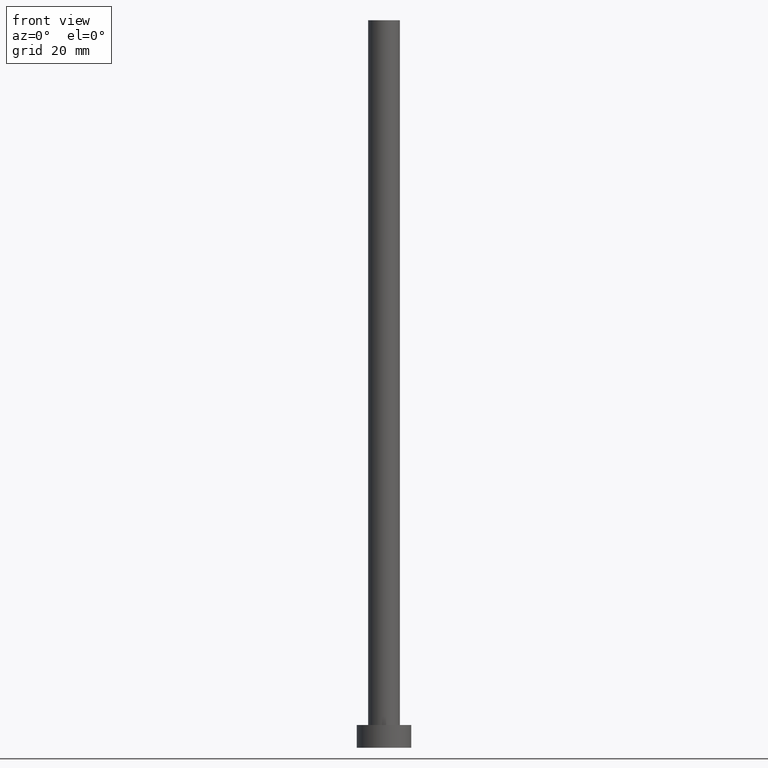
[diagram: clean part render]
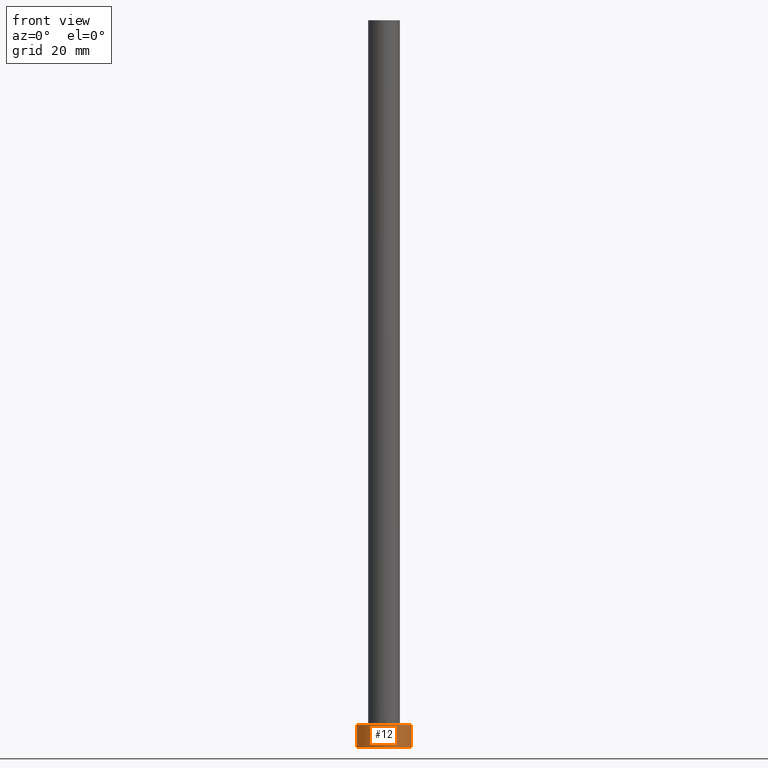
[diagram: same view with one face highlighted and labeled with its STEP entity id]
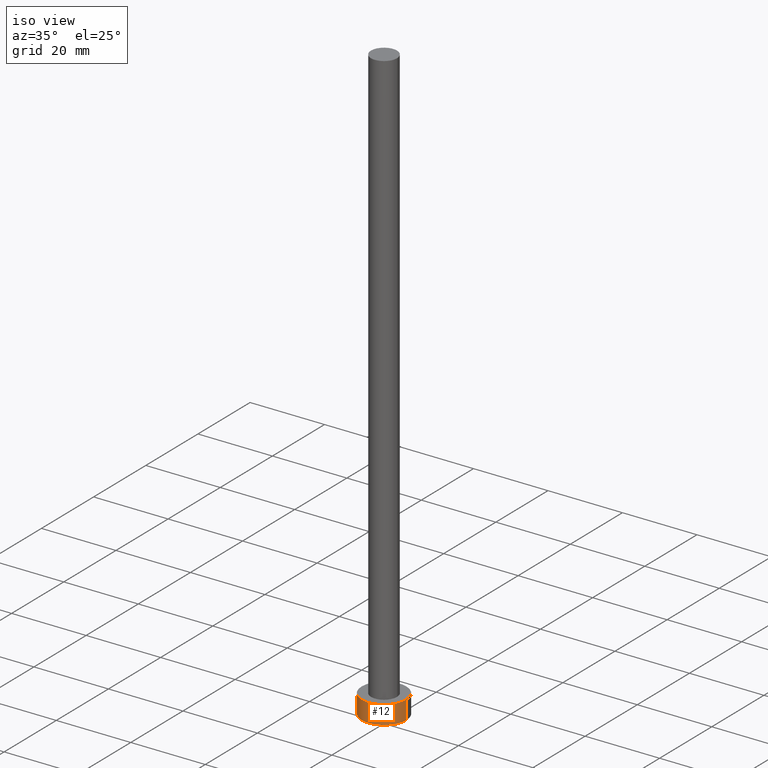
[diagram: same view with one face highlighted and labeled with its STEP entity id]
A machine part, front view. The second image highlights one B-rep face of the part: STEP entity #12.
A second angle (iso view) of the same face is appended — the face is thin or edge-on in the first view.
In plain terms, the highlighted cylindrical surface (edge-blend (fillet) strip) has radius 6 mm, axis along (-0, -0, -1).
Its self-contained STEP definition (entity closure, byte-faithful):
#2 = CARTESIAN_POINT ( 'NONE',  ( 0.000000000000000000, 0.000000000000000000, 5.000000000000000000 ) ) ;
#9 = VERTEX_POINT ( 'NONE', #247 ) ;
#12 = ADVANCED_FACE ( 'NONE', ( #28 ), #75, .T. ) ;
#22 = AXIS2_PLACEMENT_3D ( 'NONE', #2, #154, #225 ) ;
#25 = DIRECTION ( 'NONE',  ( 1.000000000000000000, 0.000000000000000000, 0.000000000000000000 ) ) ;
#28 = FACE_OUTER_BOUND ( 'NONE', #92, .T. ) ;
#48 = CARTESIAN_POINT ( 'NONE',  ( 0.000000000000000000, 0.000000000000000000, 0.000000000000000000 ) ) ;
#49 = EDGE_CURVE ( 'NONE', #9, #148, #99, .T. ) ;
#51 = CIRCLE ( 'NONE', #83, 6.000000000000000888 ) ;
#63 = LINE ( 'NONE', #157, #192 ) ;
#75 = CYLINDRICAL_SURFACE ( 'NONE', #22, 6.000000000000000888 ) ;
#82 = DIRECTION ( 'NONE',  ( -0.000000000000000000, -0.000000000000000000, -1.000000000000000000 ) ) ;
#83 = AXIS2_PLACEMENT_3D ( 'NONE', #203, #246, #127 ) ;
#89 = CARTESIAN_POINT ( 'NONE',  ( 6.000000000000000888, 7.347880794884120722E-16, 0.000000000000000000 ) ) ;
#92 = EDGE_LOOP ( 'NONE', ( #149, #134, #224, #95 ) ) ;
#95 = ORIENTED_EDGE ( 'NONE', *, *, #49, .T. ) ;
#99 = CIRCLE ( 'NONE', #163, 6.000000000000000888 ) ;
#101 = EDGE_CURVE ( 'NONE', #137, #148, #105, .T. ) ;
#105 = LINE ( 'NONE', #254, #174 ) ;
#127 = DIRECTION ( 'NONE',  ( 1.000000000000000000, 0.000000000000000000, 0.000000000000000000 ) ) ;
#128 = CARTESIAN_POINT ( 'NONE',  ( 6.000000000000000888, 7.347880794884120722E-16, 5.000000000000000000 ) ) ;
#129 = DIRECTION ( 'NONE',  ( 0.000000000000000000, 0.000000000000000000, 1.000000000000000000 ) ) ;
#134 = ORIENTED_EDGE ( 'NONE', *, *, #145, .F. ) ;
#137 = VERTEX_POINT ( 'NONE', #128 ) ;
#139 = DIRECTION ( 'NONE',  ( -0.000000000000000000, -0.000000000000000000, -1.000000000000000000 ) ) ;
#145 = EDGE_CURVE ( 'NONE', #204, #137, #51, .T. ) ;
#148 = VERTEX_POINT ( 'NONE', #89 ) ;
#149 = ORIENTED_EDGE ( 'NONE', *, *, #101, .F. ) ;
#154 = DIRECTION ( 'NONE',  ( -0.000000000000000000, -0.000000000000000000, -1.000000000000000000 ) ) ;
#157 = CARTESIAN_POINT ( 'NONE',  ( -6.000000000000000888, 0.000000000000000000, 5.000000000000000000 ) ) ;
#163 = AXIS2_PLACEMENT_3D ( 'NONE', #48, #129, #25 ) ;
#172 = CARTESIAN_POINT ( 'NONE',  ( -6.000000000000000888, 0.000000000000000000, 5.000000000000000000 ) ) ;
#174 = VECTOR ( 'NONE', #82, 1000.000000000000000 ) ;
#192 = VECTOR ( 'NONE', #139, 1000.000000000000000 ) ;
#203 = CARTESIAN_POINT ( 'NONE',  ( 0.000000000000000000, 0.000000000000000000, 5.000000000000000000 ) ) ;
#204 = VERTEX_POINT ( 'NONE', #172 ) ;
#211 = EDGE_CURVE ( 'NONE', #204, #9, #63, .T. ) ;
#224 = ORIENTED_EDGE ( 'NONE', *, *, #211, .T. ) ;
#225 = DIRECTION ( 'NONE',  ( -1.000000000000000000, 0.000000000000000000, 0.000000000000000000 ) ) ;
#246 = DIRECTION ( 'NONE',  ( 0.000000000000000000, 0.000000000000000000, 1.000000000000000000 ) ) ;
#247 = CARTESIAN_POINT ( 'NONE',  ( -6.000000000000000888, 0.000000000000000000, 0.000000000000000000 ) ) ;
#254 = CARTESIAN_POINT ( 'NONE',  ( 6.000000000000000888, 7.347880794884120722E-16, 5.000000000000000000 ) ) ;